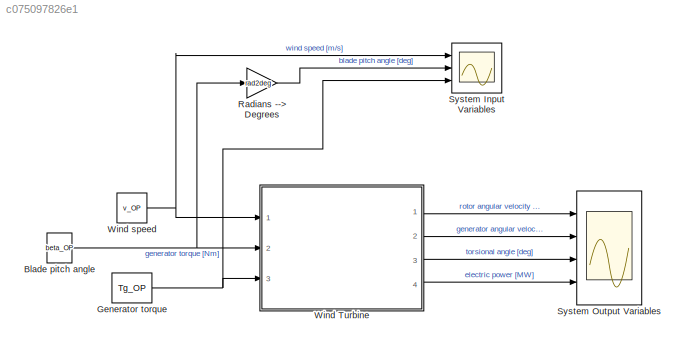
MODEL slx_c075097826e1
KIND model
BLOCK [Constant] Blade pitch angle
  Value = beta_OP
BLOCK [Constant] Generator torque
  Value = Tg_OP
BLOCK [Gain] Radians --> Degrees
  Gain = rad2deg
  OutDataTypeStr = Inherit: Inherit via internal rule
  ParamDataTypeStr = Inherit: Inherit via internal rule
  SaturateOnIntegerOverflow = off
BLOCK [Scope] System Input Variables
  DataFormat = StructureWithTime
  Floating = off
  LegendLocations = 0.91163     0.94869    0.072396    0.018302\n0.89757     0.62916    0.086458    0.018302\n0.89705     0.31053    0.086979    0.018302
  LimitDataPoints = off
  NumInputPorts = 3
  Ports = [3]
  SampleTime = 0
  ShowLegends = on
  YMax = 5~5~5
  YMin = -5~-5~-5
BLOCK [Scope] System Output Variables
  DataFormat = StructureWithTime
  Floating = off
  LegendLocations = 0.87986     0.94869    0.098958    0.018302\n0.86736     0.70927     0.11146    0.018302\n0.89913     0.46985    0.079687    0.018302\n0.89913     0.23132    0.079687    0.018302
  LimitDataPoints = off
  NumInputPorts = 4
  Ports = [4]
  SampleTime = 0
  SaveName = ScopeData1
  ShowLegends = on
  YMax = 5~5~5~5
  YMin = -5~-5~-5~-5
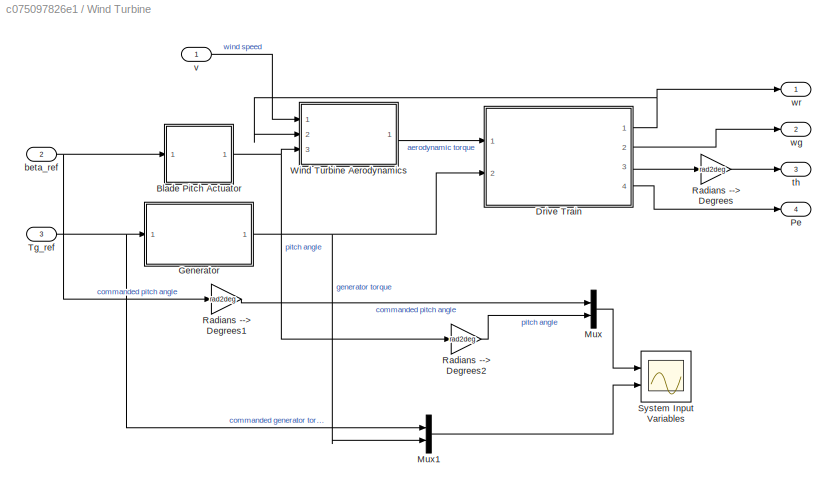
BLOCK [SubSystem] Wind Turbine
  FunctionWithSeparateData = off
  MaskHideContents = off
  MinAlgLoopOccurrences = off
  Opaque = off
  Ports = [3, 4]
  PropExecContextOutsideSubsystem = off
  RTWSystemCode = Auto
  RequestExecContextInheritance = off
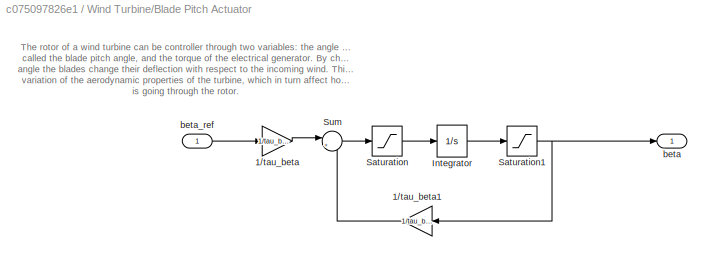
BLOCK [SubSystem] Wind Turbine/Blade Pitch Actuator
  FunctionWithSeparateData = off
  MaskHideContents = off
  MinAlgLoopOccurrences = off
  Opaque = off
  Ports = [1, 1]
  PropExecContextOutsideSubsystem = off
  RTWSystemCode = Auto
  RequestExecContextInheritance = off
BLOCK [Gain] Wind Turbine/Blade Pitch Actuator/1//tau_beta
  Gain = 1/tau_beta
  OutDataTypeStr = Inherit: Inherit via internal rule
  ParamDataTypeStr = Inherit: Inherit via internal rule
  SaturateOnIntegerOverflow = off
BLOCK [Gain] Wind Turbine/Blade Pitch Actuator/1//tau_beta1
  Gain = 1/tau_beta
  OutDataTypeStr = Inherit: Inherit via internal rule
  ParamDataTypeStr = Inherit: Inherit via internal rule
  SaturateOnIntegerOverflow = off
BLOCK [Integrator] Wind Turbine/Blade Pitch Actuator/Integrator
  InitialCondition = x0(4)
  Ports = [1, 1]
  Priority = 4
BLOCK [Saturate] Wind Turbine/Blade Pitch Actuator/Saturation
  InputPortMap = u0
  LowerLimit = dbeta_min
  Ports = [1, 1]
  UpperLimit = dbeta_max
BLOCK [Saturate] Wind Turbine/Blade Pitch Actuator/Saturation1
  InputPortMap = u0
  LowerLimit = beta_min
  Ports = [1, 1]
  UpperLimit = beta_max
BLOCK [Sum] Wind Turbine/Blade Pitch Actuator/Sum
  IconShape = round
  InputSameDT = off
  Inputs = |+-
  OutDataTypeStr = Inherit: Inherit via internal rule
  Ports = [2, 1]
  SaturateOnIntegerOverflow = off
BLOCK [Outport] Wind Turbine/Blade Pitch Actuator/beta
  IconDisplay = Port number
BLOCK [Inport] Wind Turbine/Blade Pitch Actuator/beta_ref
  IconDisplay = Port number
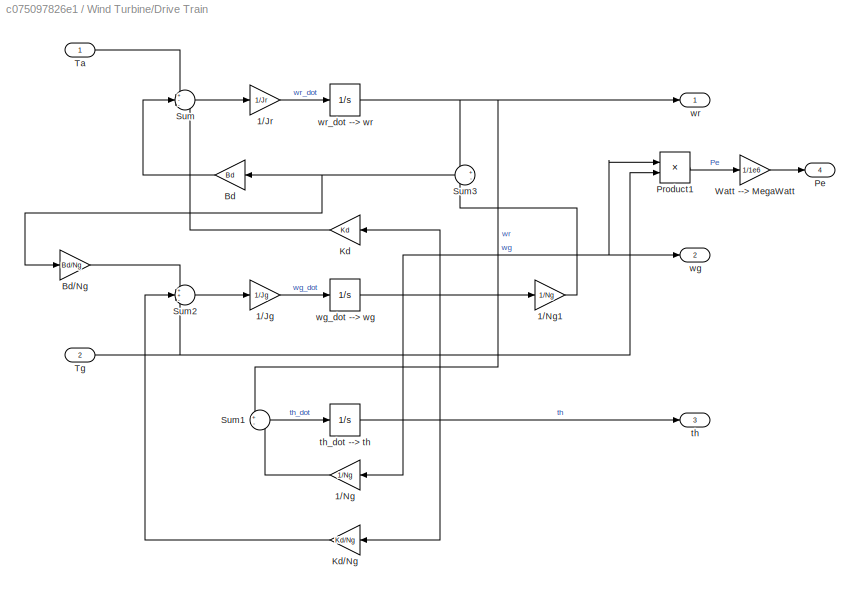
BLOCK [SubSystem] Wind Turbine/Drive Train
  FunctionWithSeparateData = off
  MaskHideContents = off
  MinAlgLoopOccurrences = off
  Opaque = off
  Ports = [2, 4]
  PropExecContextOutsideSubsystem = off
  RTWSystemCode = Auto
  RequestExecContextInheritance = off
BLOCK [Gain] Wind Turbine/Drive Train/1//Jg
  Gain = 1/Jg
  OutDataTypeStr = Inherit: Inherit via internal rule
  ParamDataTypeStr = Inherit: Inherit via internal rule
  SaturateOnIntegerOverflow = off
BLOCK [Gain] Wind Turbine/Drive Train/1//Jr
  Gain = 1/Jr
  OutDataTypeStr = Inherit: Inherit via internal rule
  ParamDataTypeStr = Inherit: Inherit via internal rule
  SaturateOnIntegerOverflow = off
BLOCK [Gain] Wind Turbine/Drive Train/1//Ng
  Gain = 1/Ng
  OutDataTypeStr = Inherit: Inherit via internal rule
  ParamDataTypeStr = Inherit: Inherit via internal rule
  SaturateOnIntegerOverflow = off
BLOCK [Gain] Wind Turbine/Drive Train/1//Ng1
  Gain = 1/Ng
  OutDataTypeStr = Inherit: Inherit via internal rule
  ParamDataTypeStr = Inherit: Inherit via internal rule
  SaturateOnIntegerOverflow = off
BLOCK [Gain] Wind Turbine/Drive Train/Bd
  Gain = Bd
  OutDataTypeStr = Inherit: Inherit via internal rule
  ParamDataTypeStr = Inherit: Inherit via internal rule
  SaturateOnIntegerOverflow = off
BLOCK [Gain] Wind Turbine/Drive Train/Bd//Ng
  Gain = Bd/Ng
  OutDataTypeStr = Inherit: Inherit via internal rule
  ParamDataTypeStr = Inherit: Inherit via internal rule
  SaturateOnIntegerOverflow = off
BLOCK [Gain] Wind Turbine/Drive Train/Kd
  Gain = Kd
  OutDataTypeStr = Inherit: Inherit via internal rule
  ParamDataTypeStr = Inherit: Inherit via internal rule
  SaturateOnIntegerOverflow = off
BLOCK [Gain] Wind Turbine/Drive Train/Kd//Ng
  Gain = Kd/Ng
  OutDataTypeStr = Inherit: Inherit via internal rule
  ParamDataTypeStr = Inherit: Inherit via internal rule
  SaturateOnIntegerOverflow = off
BLOCK [Outport] Wind Turbine/Drive Train/Pe
  IconDisplay = Port number
  Port = 4
BLOCK [Product] Wind Turbine/Drive Train/Product1
  InputSameDT = off
  OutDataTypeStr = Inherit: Inherit via internal rule
  Ports = [2, 1]
  RndMeth = Floor
  SaturateOnIntegerOverflow = off
BLOCK [Sum] Wind Turbine/Drive Train/Sum
  IconShape = round
  InputSameDT = off
  Inputs = +--
  OutDataTypeStr = Inherit: Inherit via internal rule
  Ports = [3, 1]
  SaturateOnIntegerOverflow = off
BLOCK [Sum] Wind Turbine/Drive Train/Sum1
  IconShape = round
  InputSameDT = off
  Inputs = +-
  OutDataTypeStr = Inherit: Inherit via internal rule
  Ports = [2, 1]
  SaturateOnIntegerOverflow = off
BLOCK [Sum] Wind Turbine/Drive Train/Sum2
  IconShape = round
  InputSameDT = off
  Inputs = ++-
  OutDataTypeStr = Inherit: Inherit via internal rule
  Ports = [3, 1]
  SaturateOnIntegerOverflow = off
BLOCK [Sum] Wind Turbine/Drive Train/Sum3
  IconShape = round
  InputSameDT = off
  Inputs = +-
  OutDataTypeStr = Inherit: Inherit via internal rule
  Ports = [2, 1]
  SaturateOnIntegerOverflow = off
BLOCK [Inport] Wind Turbine/Drive Train/Ta
  IconDisplay = Port number
BLOCK [Inport] Wind Turbine/Drive Train/Tg
  IconDisplay = Port number
  Port = 2
BLOCK [Gain] Wind Turbine/Drive Train/Watt --> MegaWatt
  Gain = 1/1e6
  OutDataTypeStr = Inherit: Inherit via internal rule
  ParamDataTypeStr = Inherit: Inherit via internal rule
  SaturateOnIntegerOverflow = off
BLOCK [Outport] Wind Turbine/Drive Train/th
  IconDisplay = Port number
  Port = 3
BLOCK [Integrator] Wind Turbine/Drive Train/th_dot --> th
  InitialCondition = x0(3)
  LowerSaturationLimit = 0
  Ports = [1, 1]
  Priority = 3
BLOCK [Outport] Wind Turbine/Drive Train/wg
  IconDisplay = Port number
  Port = 2
BLOCK [Integrator] Wind Turbine/Drive Train/wg_dot --> wg
  InitialCondition = x0(2)
  LowerSaturationLimit = 0
  Ports = [1, 1]
  Priority = 2
BLOCK [Outport] Wind Turbine/Drive Train/wr
  IconDisplay = Port number
BLOCK [Integrator] Wind Turbine/Drive Train/wr_dot --> wr
  InitialCondition = x0(1)
  LowerSaturationLimit = 0
  Ports = [1, 1]
  Priority = 1
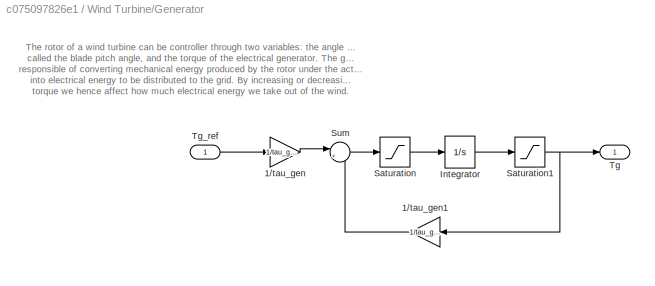
BLOCK [SubSystem] Wind Turbine/Generator
  FunctionWithSeparateData = off
  MaskHideContents = off
  MinAlgLoopOccurrences = off
  Opaque = off
  Ports = [1, 1]
  PropExecContextOutsideSubsystem = off
  RTWSystemCode = Auto
  RequestExecContextInheritance = off
BLOCK [Gain] Wind Turbine/Generator/1//tau_gen
  Gain = 1/tau_gen
  OutDataTypeStr = Inherit: Inherit via internal rule
  ParamDataTypeStr = Inherit: Inherit via internal rule
  SaturateOnIntegerOverflow = off
BLOCK [Gain] Wind Turbine/Generator/1//tau_gen1
  Gain = 1/tau_gen
  OutDataTypeStr = Inherit: Inherit via internal rule
  ParamDataTypeStr = Inherit: Inherit via internal rule
  SaturateOnIntegerOverflow = off
BLOCK [Integrator] Wind Turbine/Generator/Integrator
  InitialCondition = x0(5)
  Ports = [1, 1]
  Priority = 5
BLOCK [Saturate] Wind Turbine/Generator/Saturation
  InputPortMap = u0
  LowerLimit = dgen_min
  Ports = [1, 1]
  UpperLimit = dgen_max
BLOCK [Saturate] Wind Turbine/Generator/Saturation1
  InputPortMap = u0
  LowerLimit = gen_min
  Ports = [1, 1]
  UpperLimit = gen_max
BLOCK [Sum] Wind Turbine/Generator/Sum
  IconShape = round
  InputSameDT = off
  Inputs = |+-
  OutDataTypeStr = Inherit: Inherit via internal rule
  Ports = [2, 1]
  SaturateOnIntegerOverflow = off
BLOCK [Outport] Wind Turbine/Generator/Tg
  IconDisplay = Port number
BLOCK [Inport] Wind Turbine/Generator/Tg_ref
  IconDisplay = Port number
BLOCK [Mux] Wind Turbine/Mux
  DisplayOption = bar
  Inputs = 2
  Ports = [2, 1]
BLOCK [Mux] Wind Turbine/Mux1
  DisplayOption = bar
  Inputs = 2
  Ports = [2, 1]
BLOCK [Outport] Wind Turbine/Pe
  IconDisplay = Port number
  Port = 4
BLOCK [Gain] Wind Turbine/Radians --> Degrees
  Gain = rad2deg
  OutDataTypeStr = Inherit: Inherit via internal rule
  ParamDataTypeStr = Inherit: Inherit via internal rule
  SaturateOnIntegerOverflow = off
BLOCK [Gain] Wind Turbine/Radians --> Degrees1
  Gain = rad2deg
  OutDataTypeStr = Inherit: Inherit via internal rule
  ParamDataTypeStr = Inherit: Inherit via internal rule
  SaturateOnIntegerOverflow = off
BLOCK [Gain] Wind Turbine/Radians --> Degrees2
  Gain = rad2deg
  OutDataTypeStr = Inherit: Inherit via internal rule
  ParamDataTypeStr = Inherit: Inherit via internal rule
  SaturateOnIntegerOverflow = off
BLOCK [Scope] Wind Turbine/System Input Variables
  DataFormat = StructureWithTime
  Floating = off
  LegendLocations = 0.87458     0.91362     0.10714    0.042503\n0.85766     0.44372     0.12343    0.042503
  LimitDataPoints = off
  NumInputPorts = 2
  Ports = [2]
  SampleTime = 0
  SaveName = ScopeData2
  ShowLegends = on
  YMax = 1050~40680.3
  YMin = 0~40680.3
  ZoomMode = xonly
BLOCK [Inport] Wind Turbine/Tg_ref
  IconDisplay = Port number
  Port = 3
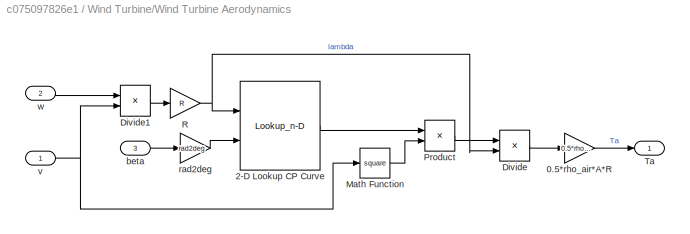
BLOCK [SubSystem] Wind Turbine/Wind Turbine Aerodynamics
  FunctionWithSeparateData = off
  MaskHideContents = off
  MinAlgLoopOccurrences = off
  Opaque = off
  Ports = [3, 1]
  PropExecContextOutsideSubsystem = off
  RTWSystemCode = Auto
  RequestExecContextInheritance = off
BLOCK [Gain] Wind Turbine/Wind Turbine Aerodynamics/0.5*rho_air*A*R
  Gain = 0.5*rho_air*A*R
  OutDataTypeStr = Inherit: Inherit via internal rule
  ParamDataTypeStr = Inherit: Inherit via internal rule
  SaturateOnIntegerOverflow = off
BLOCK [Lookup_n-D] Wind Turbine/Wind Turbine Aerodynamics/2-D Lookup CP Curve
  BreakpointsForDimension1 = Lambda0
  BreakpointsForDimension2 = Pitch0
  BreakpointsForDimension3 = CP0'
  DiagnosticForOutOfRangeInput = Warning
  Ports = [2, 1]
  RndMeth = Simplest
  Table = CP0
BLOCK [Product] Wind Turbine/Wind Turbine Aerodynamics/Divide
  InputSameDT = off
  Inputs = */
  OutDataTypeStr = Inherit: Inherit via internal rule
  Ports = [2, 1]
  RndMeth = Floor
  SaturateOnIntegerOverflow = off
BLOCK [Product] Wind Turbine/Wind Turbine Aerodynamics/Divide1
  InputSameDT = off
  Inputs = */
  OutDataTypeStr = Inherit: Inherit via internal rule
  Ports = [2, 1]
  RndMeth = Floor
  SaturateOnIntegerOverflow = off
BLOCK [Math] Wind Turbine/Wind Turbine Aerodynamics/Math Function
  Operator = square
  Ports = [1, 1]
BLOCK [Product] Wind Turbine/Wind Turbine Aerodynamics/Product
  InputSameDT = off
  OutDataTypeStr = Inherit: Inherit via internal rule
  Ports = [2, 1]
  RndMeth = Floor
  SaturateOnIntegerOverflow = off
BLOCK [Gain] Wind Turbine/Wind Turbine Aerodynamics/R
  Gain = R
  OutDataTypeStr = Inherit: Inherit via internal rule
  ParamDataTypeStr = Inherit: Inherit via internal rule
  SaturateOnIntegerOverflow = off
BLOCK [Outport] Wind Turbine/Wind Turbine Aerodynamics/Ta
  IconDisplay = Port number
BLOCK [Inport] Wind Turbine/Wind Turbine Aerodynamics/beta
  IconDisplay = Port number
  Port = 3
BLOCK [Gain] Wind Turbine/Wind Turbine Aerodynamics/rad2deg
  Gain = rad2deg
  OutDataTypeStr = Inherit: Inherit via internal rule
  ParamDataTypeStr = Inherit: Inherit via internal rule
  SaturateOnIntegerOverflow = off
BLOCK [Inport] Wind Turbine/Wind Turbine Aerodynamics/v
  IconDisplay = Port number
BLOCK [Inport] Wind Turbine/Wind Turbine Aerodynamics/w
  IconDisplay = Port number
  Port = 2
BLOCK [Inport] Wind Turbine/beta_ref
  IconDisplay = Port number
  Port = 2
BLOCK [Outport] Wind Turbine/th
  IconDisplay = Port number
  Port = 3
BLOCK [Inport] Wind Turbine/v
  IconDisplay = Port number
BLOCK [Outport] Wind Turbine/wg
  IconDisplay = Port number
  Port = 2
BLOCK [Outport] Wind Turbine/wr
  IconDisplay = Port number
BLOCK [Constant] Wind speed
  Value = v_OP
ANNOTATION Wind Turbine/Blade Pitch Actuator: The rotor of a wind turbine can be controller through two variables: the angle of each blade, called the blade pitch angle, and the torque of the electrical generator. By changing the pitch angle the blades change their deflection with respect to the incoming wind. This produces a variation of the aerodynamic properties of the turbine, which in turn affect how much wind energy is going through the...<+7ch>
ANNOTATION Wind Turbine/Generator: The rotor of a wind turbine can be controller through two variables: the angle of each blade, called the blade pitch angle, and the torque of the electrical generator. The generator is instead responsible of converting mechanical energy produced by the rotor under the action of the wind into electrical energy to be distributed to the grid. By increasing or decreasing the generator torque we hence ...<+58ch>
NET Blade pitch angle:1 -> Radians --> Degrees:1, Wind Turbine:2
NET Generator torque:1 -> System Input Variables:3, Wind Turbine:3
LINE Radians --> Degrees:1 -> System Input Variables:2
LINE Wind Turbine/Blade Pitch Actuator/1//tau_beta1:1 -> Wind Turbine/Blade Pitch Actuator/Sum:2
LINE Wind Turbine/Blade Pitch Actuator/1//tau_beta:1 -> Wind Turbine/Blade Pitch Actuator/Sum:1
LINE Wind Turbine/Blade Pitch Actuator/Integrator:1 -> Wind Turbine/Blade Pitch Actuator/Saturation1:1
NET Wind Turbine/Blade Pitch Actuator/Saturation1:1 -> Wind Turbine/Blade Pitch Actuator/1//tau_beta1:1, Wind Turbine/Blade Pitch Actuator/beta:1
LINE Wind Turbine/Blade Pitch Actuator/Saturation:1 -> Wind Turbine/Blade Pitch Actuator/Integrator:1
LINE Wind Turbine/Blade Pitch Actuator/Sum:1 -> Wind Turbine/Blade Pitch Actuator/Saturation:1
LINE Wind Turbine/Blade Pitch Actuator/beta_ref:1 -> Wind Turbine/Blade Pitch Actuator/1//tau_beta:1
NET Wind Turbine/Blade Pitch Actuator:1 -> Wind Turbine/Radians --> Degrees2:1, Wind Turbine/Wind Turbine Aerodynamics:3
LINE Wind Turbine/Drive Train/1//Jg:1 -> Wind Turbine/Drive Train/wg_dot --> wg:1
LINE Wind Turbine/Drive Train/1//Jr:1 -> Wind Turbine/Drive Train/wr_dot --> wr:1
LINE Wind Turbine/Drive Train/1//Ng1:1 -> Wind Turbine/Drive Train/Sum3:2
LINE Wind Turbine/Drive Train/1//Ng:1 -> Wind Turbine/Drive Train/Sum1:2
LINE Wind Turbine/Drive Train/Bd//Ng:1 -> Wind Turbine/Drive Train/Sum2:1
LINE Wind Turbine/Drive Train/Bd:1 -> Wind Turbine/Drive Train/Sum:2
LINE Wind Turbine/Drive Train/Kd//Ng:1 -> Wind Turbine/Drive Train/Sum2:2
LINE Wind Turbine/Drive Train/Kd:1 -> Wind Turbine/Drive Train/Sum:3
LINE Wind Turbine/Drive Train/Product1:1 -> Wind Turbine/Drive Train/Watt --> MegaWatt:1
LINE Wind Turbine/Drive Train/Sum1:1 -> Wind Turbine/Drive Train/th_dot --> th:1
LINE Wind Turbine/Drive Train/Sum2:1 -> Wind Turbine/Drive Train/1//Jg:1
NET Wind Turbine/Drive Train/Sum3:1 -> Wind Turbine/Drive Train/Bd//Ng:1, Wind Turbine/Drive Train/Bd:1
LINE Wind Turbine/Drive Train/Sum:1 -> Wind Turbine/Drive Train/1//Jr:1
LINE Wind Turbine/Drive Train/Ta:1 -> Wind Turbine/Drive Train/Sum:1
NET Wind Turbine/Drive Train/Tg:1 -> Wind Turbine/Drive Train/Product1:2, Wind Turbine/Drive Train/Sum2:3
LINE Wind Turbine/Drive Train/Watt --> MegaWatt:1 -> Wind Turbine/Drive Train/Pe:1
NET Wind Turbine/Drive Train/th_dot --> th:1 -> Wind Turbine/Drive Train/Kd//Ng:1, Wind Turbine/Drive Train/Kd:1, Wind Turbine/Drive Train/th:1
NET Wind Turbine/Drive Train/wg_dot --> wg:1 -> Wind Turbine/Drive Train/1//Ng1:1, Wind Turbine/Drive Train/1//Ng:1, Wind Turbine/Drive Train/Product1:1, Wind Turbine/Drive Train/wg:1
NET Wind Turbine/Drive Train/wr_dot --> wr:1 -> Wind Turbine/Drive Train/Sum1:1, Wind Turbine/Drive Train/Sum3:1, Wind Turbine/Drive Train/wr:1
NET Wind Turbine/Drive Train:1 -> Wind Turbine/Wind Turbine Aerodynamics:2, Wind Turbine/wr:1
LINE Wind Turbine/Drive Train:2 -> Wind Turbine/wg:1
LINE Wind Turbine/Drive Train:3 -> Wind Turbine/Radians --> Degrees:1
LINE Wind Turbine/Drive Train:4 -> Wind Turbine/Pe:1
LINE Wind Turbine/Generator/1//tau_gen1:1 -> Wind Turbine/Generator/Sum:2
LINE Wind Turbine/Generator/1//tau_gen:1 -> Wind Turbine/Generator/Sum:1
LINE Wind Turbine/Generator/Integrator:1 -> Wind Turbine/Generator/Saturation1:1
NET Wind Turbine/Generator/Saturation1:1 -> Wind Turbine/Generator/1//tau_gen1:1, Wind Turbine/Generator/Tg:1
LINE Wind Turbine/Generator/Saturation:1 -> Wind Turbine/Generator/Integrator:1
LINE Wind Turbine/Generator/Sum:1 -> Wind Turbine/Generator/Saturation:1
LINE Wind Turbine/Generator/Tg_ref:1 -> Wind Turbine/Generator/1//tau_gen:1
NET Wind Turbine/Generator:1 -> Wind Turbine/Drive Train:2, Wind Turbine/Mux1:2
LINE Wind Turbine/Mux1:1 -> Wind Turbine/System Input Variables:2
LINE Wind Turbine/Mux:1 -> Wind Turbine/System Input Variables:1
LINE Wind Turbine/Radians --> Degrees1:1 -> Wind Turbine/Mux:1
LINE Wind Turbine/Radians --> Degrees2:1 -> Wind Turbine/Mux:2
LINE Wind Turbine/Radians --> Degrees:1 -> Wind Turbine/th:1
NET Wind Turbine/Tg_ref:1 -> Wind Turbine/Generator:1, Wind Turbine/Mux1:1
LINE Wind Turbine/Wind Turbine Aerodynamics/0.5*rho_air*A*R:1 -> Wind Turbine/Wind Turbine Aerodynamics/Ta:1
LINE Wind Turbine/Wind Turbine Aerodynamics/2-D Lookup CP Curve:1 -> Wind Turbine/Wind Turbine Aerodynamics/Product:1
LINE Wind Turbine/Wind Turbine Aerodynamics/Divide1:1 -> Wind Turbine/Wind Turbine Aerodynamics/R:1
LINE Wind Turbine/Wind Turbine Aerodynamics/Divide:1 -> Wind Turbine/Wind Turbine Aerodynamics/0.5*rho_air*A*R:1
LINE Wind Turbine/Wind Turbine Aerodynamics/Math Function:1 -> Wind Turbine/Wind Turbine Aerodynamics/Product:2
LINE Wind Turbine/Wind Turbine Aerodynamics/Product:1 -> Wind Turbine/Wind Turbine Aerodynamics/Divide:1
NET Wind Turbine/Wind Turbine Aerodynamics/R:1 -> Wind Turbine/Wind Turbine Aerodynamics/2-D Lookup CP Curve:1, Wind Turbine/Wind Turbine Aerodynamics/Divide:2
LINE Wind Turbine/Wind Turbine Aerodynamics/beta:1 -> Wind Turbine/Wind Turbine Aerodynamics/rad2deg:1
LINE Wind Turbine/Wind Turbine Aerodynamics/rad2deg:1 -> Wind Turbine/Wind Turbine Aerodynamics/2-D Lookup CP Curve:2
NET Wind Turbine/Wind Turbine Aerodynamics/v:1 -> Wind Turbine/Wind Turbine Aerodynamics/Divide1:2, Wind Turbine/Wind Turbine Aerodynamics/Math Function:1
LINE Wind Turbine/Wind Turbine Aerodynamics/w:1 -> Wind Turbine/Wind Turbine Aerodynamics/Divide1:1
LINE Wind Turbine/Wind Turbine Aerodynamics:1 -> Wind Turbine/Drive Train:1
NET Wind Turbine/beta_ref:1 -> Wind Turbine/Blade Pitch Actuator:1, Wind Turbine/Radians --> Degrees1:1
LINE Wind Turbine/v:1 -> Wind Turbine/Wind Turbine Aerodynamics:1
LINE Wind Turbine:1 -> System Output Variables:1
LINE Wind Turbine:2 -> System Output Variables:2
LINE Wind Turbine:3 -> System Output Variables:3
LINE Wind Turbine:4 -> System Output Variables:4
NET Wind speed:1 -> System Input Variables:1, Wind Turbine:1
note: NET lines group one-source signal fan-out (src -> all destinations, sorted); 1:1 wires keep LINE
